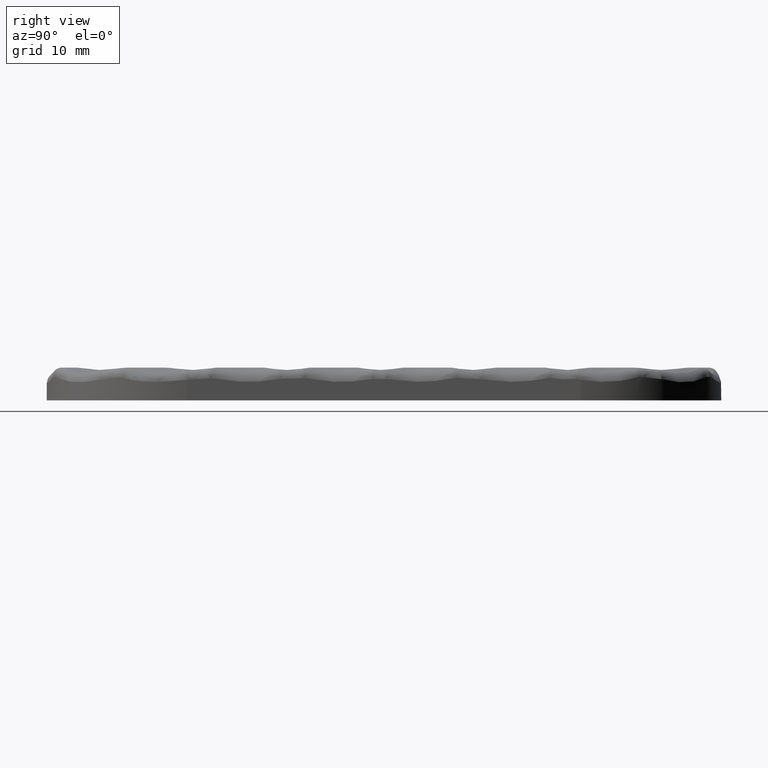
[diagram: clean part render]
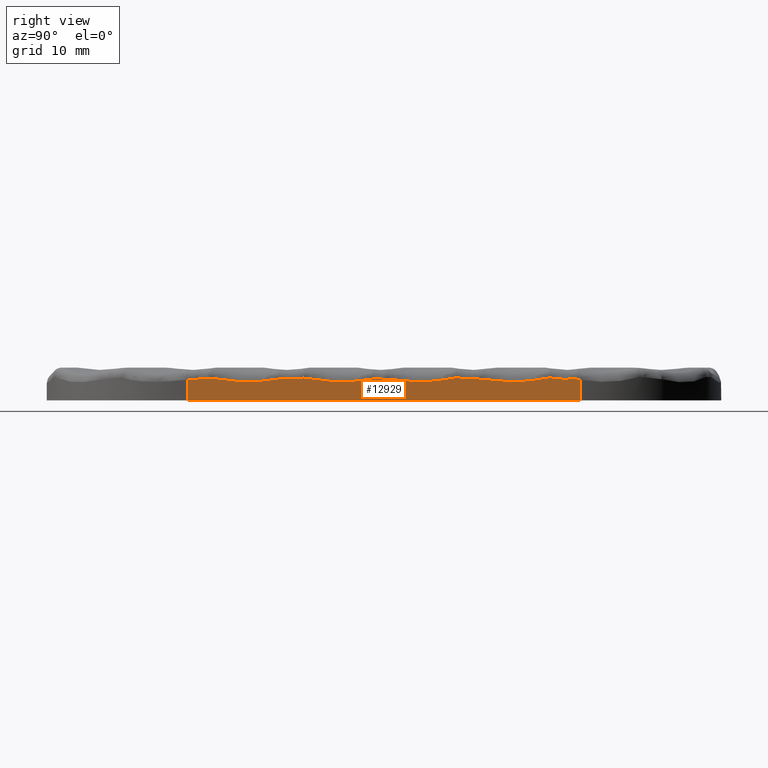
[diagram: same view with one face highlighted and labeled with its STEP entity id]
A machine part, right view. The second image highlights one B-rep face of the part: STEP entity #12929.
In plain terms, the highlighted planar face has unit normal (-1, 0, 0).
Its self-contained STEP definition (entity closure, byte-faithful):
#70 = CARTESIAN_POINT ( 'NONE',  ( 15.00000000000001600, 10.26515121054053000, 2.266741671530982500 ) ) ;
#424 = DIRECTION ( 'NONE',  ( -0.0000000000000000000, -0.0000000000000000000, -1.000000000000000000 ) ) ;
#558 = VERTEX_POINT ( 'NONE', #4744 ) ;
#687 = CARTESIAN_POINT ( 'NONE',  ( 15.00000000000283200, -1.228737188735840900, 2.278487614124075300 ) ) ;
#964 = VERTEX_POINT ( 'NONE', #3925 ) ;
#978 = EDGE_CURVE ( 'NONE', #5877, #24767, #23312, .T. ) ;
#1010 = CARTESIAN_POINT ( 'NONE',  ( 15.00000000000000200, 19.58506718431053500, 2.212813865225828000 ) ) ;
#1072 = CARTESIAN_POINT ( 'NONE',  ( 15.00000000000000000, -20.02405517232721300, 2.255134669010250300 ) ) ;
#1246 = ORIENTED_EDGE ( 'NONE', *, *, #10887, .F. ) ;
#1394 = EDGE_CURVE ( 'NONE', #24767, #16163, #23773, .T. ) ;
#2309 = CARTESIAN_POINT ( 'NONE',  ( 15.00000000000018300, -18.58166615907482500, 2.379845569770552100 ) ) ;
#2345 = CARTESIAN_POINT ( 'NONE',  ( 15.00000000000000000, 8.523427355173828000, 2.267326169661894500 ) ) ;
#2380 = VERTEX_POINT ( 'NONE', #2594 ) ;
#2515 = ORIENTED_EDGE ( 'NONE', *, *, #16660, .F. ) ;
#2594 = CARTESIAN_POINT ( 'NONE',  ( 15.00000000000001100, -11.22873718874324400, 2.278487614125050100 ) ) ;
#2658 = LINE ( 'NONE', #11893, #18635 ) ;
#2695 = CARTESIAN_POINT ( 'NONE',  ( 15.00000000000000000, -7.363233738469245900, 2.129852420028608900 ) ) ;
#2761 = B_SPLINE_CURVE_WITH_KNOTS ( 'NONE', 3,
 ( #21932, #24035, #11522, #26125 ),
 .UNSPECIFIED., .F., .F.,
 ( 4, 4 ),
 ( 0.0000000000000000000, 1.000000000000000000 ),
 .UNSPECIFIED. ) ;
#3083 = ORIENTED_EDGE ( 'NONE', *, *, #13770, .F. ) ;
#3223 = LINE ( 'NONE', #25138, #13653 ) ;
#3386 = CARTESIAN_POINT ( 'NONE',  ( 15.00000000000000200, -19.05979786032249400, 2.310562813426318800 ) ) ;
#3603 = B_SPLINE_CURVE_WITH_KNOTS ( 'NONE', 3,
 ( #10961, #2695, #8957, #23565, #11049, #25656, #13142, #687 ),
 .UNSPECIFIED., .F., .F.,
 ( 4, 2, 2, 4 ),
 ( 0.0000000000000000000, 0.5000000000000000000, 0.7500000000000000000, 1.000000000000000000 ),
 .UNSPECIFIED. ) ;
#3831 = CARTESIAN_POINT ( 'NONE',  ( 15.00000000000000000, -0.7313015001417037000, 2.244930736326999900 ) ) ;
#3925 = CARTESIAN_POINT ( 'NONE',  ( 14.99999999999883500, 20.55022023845433300, 2.284725248673581200 ) ) ;
#4010 = CARTESIAN_POINT ( 'NONE',  ( 15.00000000000000000, -20.99999999999999600, 3.500000000000000000 ) ) ;
#4043 = B_SPLINE_CURVE_WITH_KNOTS ( 'NONE', 3,
 ( #70, #12629, #16800, #4338, #18925, #6407 ),
 .UNSPECIFIED., .F., .F.,
 ( 4, 2, 4 ),
 ( 0.0000000000000000000, 0.5000000000000000000, 1.000000000000000000 ),
 .UNSPECIFIED. ) ;
#4314 = ORIENTED_EDGE ( 'NONE', *, *, #978, .F. ) ;
#4338 = CARTESIAN_POINT ( 'NONE',  ( 15.00000000000000000, 15.20915827264443200, 2.007467431866691900 ) ) ;
#4392 = CARTESIAN_POINT ( 'NONE',  ( 15.00000000000000000, -16.13546356255181600, 1.999753517743418500 ) ) ;
#4436 = DIRECTION ( 'NONE',  ( 0.0000000000000000000, 0.0000000000000000000, 1.000000000000000000 ) ) ;
#4744 = CARTESIAN_POINT ( 'NONE',  ( 15.00000000000000000, -20.99999999999999600, 0.0000000000000000000 ) ) ;
#5070 = CARTESIAN_POINT ( 'NONE',  ( 15.00000000000000000, -20.34984409943866600, 2.245817095981205400 ) ) ;
#5108 =( BOUNDED_CURVE ( )  B_SPLINE_CURVE ( 3, ( #8614, #2345, #10707, #25322 ),
 .UNSPECIFIED., .F., .T. ) 
 B_SPLINE_CURVE_WITH_KNOTS ( ( 4, 4 ),
 ( 0.0000000000000000000, 1.000000000000000000 ),
 .UNSPECIFIED. ) 
 CURVE ( )  GEOMETRIC_REPRESENTATION_ITEM ( )  RATIONAL_B_SPLINE_CURVE ( ( 1.000000000000000000, 0.9964023072120087300, 0.9964023072120087300, 1.000000000000000000 ) ) 
 REPRESENTATION_ITEM ( '' )  );
#5296 = CARTESIAN_POINT ( 'NONE',  ( 15.00000000000000200, -19.54112737258910900, 2.268946414184715500 ) ) ;
#5446 = VERTEX_POINT ( 'NONE', #20679 ) ;
#5877 = VERTEX_POINT ( 'NONE', #17401 ) ;
#6104 = ORIENTED_EDGE ( 'NONE', *, *, #12780, .T. ) ;
#6380 = CARTESIAN_POINT ( 'NONE',  ( 15.00000000000000500, 17.66201014853802000, 2.403020253668133800 ) ) ;
#6406 = ORIENTED_EDGE ( 'NONE', *, *, #18941, .F. ) ;
#6407 = CARTESIAN_POINT ( 'NONE',  ( 15.00000000000000500, 17.66201014853802000, 2.403020253668133800 ) ) ;
#6466 = CARTESIAN_POINT ( 'NONE',  ( 15.00000000000000000, -12.45733699748620400, 2.062001201105714300 ) ) ;
#6896 = AXIS2_PLACEMENT_3D ( 'NONE', #14824, #16911, #4436 ) ;
#7117 = VERTEX_POINT ( 'NONE', #19470 ) ;
#7291 = EDGE_CURVE ( 'NONE', #13926, #12267, #4043, .T. ) ;
#7778 = LINE ( 'NONE', #4010, #12676 ) ;
#7809 = DIRECTION ( 'NONE',  ( 0.0000000000000000000, 1.000000000000000000, -0.0000000000000000000 ) ) ;
#8614 = CARTESIAN_POINT ( 'NONE',  ( 15.00000000000000200, 7.662010148538021400, 2.403020253668135100 ) ) ;
#8957 = CARTESIAN_POINT ( 'NONE',  ( 15.00000000000000000, -6.140550396327037100, 2.000083837441957600 ) ) ;
#8988 = CARTESIAN_POINT ( 'NONE',  ( 14.99999999999999800, 0.2651512105405833800, 2.266741671530956700 ) ) ;
#9112 = CARTESIAN_POINT ( 'NONE',  ( 15.00000000000000000, -9.458802295270306400, 2.252745841712117800 ) ) ;
#9715 = ORIENTED_EDGE ( 'NONE', *, *, #24015, .F. ) ;
#10697 = EDGE_CURVE ( 'NONE', #16852, #2380, #26534, .T. ) ;
#10707 = CARTESIAN_POINT ( 'NONE',  ( 15.00000000000000000, 9.394274081494726800, 2.221735956033415300 ) ) ;
#10887 = EDGE_CURVE ( 'NONE', #21027, #20453, #25043, .T. ) ;
#10961 = CARTESIAN_POINT ( 'NONE',  ( 15.00000000000018300, -8.581666159074814000, 2.379845569770550700 ) ) ;
#11049 = CARTESIAN_POINT ( 'NONE',  ( 15.00000000000000000, -3.686818261742061100, 1.994423876537335700 ) ) ;
#11215 = CARTESIAN_POINT ( 'NONE',  ( 15.00000000000000200, 7.662010148538021400, 2.403020253668135100 ) ) ;
#11265 = VERTEX_POINT ( 'NONE', #26492 ) ;
#11371 = CARTESIAN_POINT ( 'NONE',  ( 15.00000000000000500, 17.66201014853802000, 2.403020253668133800 ) ) ;
#11522 = CARTESIAN_POINT ( 'NONE',  ( 15.00000000000000000, 20.84965435162851200, 2.222282945956894000 ) ) ;
#11893 = CARTESIAN_POINT ( 'NONE',  ( 15.00000000000000000, -20.99999999999999600, 0.0000000000000000000 ) ) ;
#12019 = CARTESIAN_POINT ( 'NONE',  ( 15.00000000000000000, -0.2327506377204947900, 2.241010798390373100 ) ) ;
#12156 = CARTESIAN_POINT ( 'NONE',  ( 15.00000000000000000, -20.99999999999999300, 2.201307042172786900 ) ) ;
#12267 = VERTEX_POINT ( 'NONE', #6380 ) ;
#12341 = EDGE_CURVE ( 'NONE', #2380, #7117, #15633, .T. ) ;
#12629 = CARTESIAN_POINT ( 'NONE',  ( 15.00000000000000000, 11.50207522808742100, 2.053271842758626100 ) ) ;
#12676 = VECTOR ( 'NONE', #16462, 1000.000000000000000 ) ;
#12686 = CARTESIAN_POINT ( 'NONE',  ( 15.00000000000000000, -17.35951350239083600, 2.129089116764252500 ) ) ;
#12723 = PLANE ( 'NONE',  #6896 ) ;
#12780 = EDGE_CURVE ( 'NONE', #558, #11265, #2658, .T. ) ;
#12900 = ORIENTED_EDGE ( 'NONE', *, *, #21257, .F. ) ;
#12929 = ADVANCED_FACE ( 'NONE', ( #17302 ), #12723, .F. ) ;
#13142 = CARTESIAN_POINT ( 'NONE',  ( 15.00000000000000000, -1.837882858488858000, 2.171152613109493100 ) ) ;
#13472 = CARTESIAN_POINT ( 'NONE',  ( 15.00000000000000000, -20.02405517232721300, 2.255134669010250300 ) ) ;
#13551 = CARTESIAN_POINT ( 'NONE',  ( 15.00000000000000000, -20.99999999999999300, 2.201307042172786900 ) ) ;
#13653 = VECTOR ( 'NONE', #424, 1000.000000000000000 ) ;
#13672 = CARTESIAN_POINT ( 'NONE',  ( 15.00000000000283200, -1.228737188735840900, 2.278487614124075300 ) ) ;
#13770 = EDGE_CURVE ( 'NONE', #16163, #13926, #5108, .T. ) ;
#13802 = CARTESIAN_POINT ( 'NONE',  ( 15.00000000000000000, -20.02405517232721300, 2.255134669010250300 ) ) ;
#13926 = VERTEX_POINT ( 'NONE', #21908 ) ;
#13950 = CARTESIAN_POINT ( 'NONE',  ( 14.99999999999999800, 0.2651512105405833800, 2.266741671530956700 ) ) ;
#14611 =( BOUNDED_CURVE ( )  B_SPLINE_CURVE ( 3, ( #13802, #5296, #3386, #17984 ),
 .UNSPECIFIED., .F., .F. ) 
 B_SPLINE_CURVE_WITH_KNOTS ( ( 4, 4 ),
 ( 0.0000000000000000000, 1.000000000000000000 ),
 .UNSPECIFIED. ) 
 CURVE ( )  GEOMETRIC_REPRESENTATION_ITEM ( )  RATIONAL_B_SPLINE_CURVE ( ( 1.000000000000000000, 0.9988922879187340800, 0.9988922879187340800, 1.000000000000000000 ) ) 
 REPRESENTATION_ITEM ( '' )  );
#14824 = CARTESIAN_POINT ( 'NONE',  ( 15.00000000000000000, -20.99999999999999600, 3.500000000000000000 ) ) ;
#15559 = CARTESIAN_POINT ( 'NONE',  ( 14.99999999999883500, 20.55022023845433300, 2.284725248673581200 ) ) ;
#15633 =( BOUNDED_CURVE ( )  B_SPLINE_CURVE ( 3, ( #19515, #19334, #9112, #23723 ),
 .UNSPECIFIED., .F., .T. ) 
 B_SPLINE_CURVE_WITH_KNOTS ( ( 4, 4 ),
 ( 0.0000000000000000000, 1.000000000000000000 ),
 .UNSPECIFIED. ) 
 CURVE ( )  GEOMETRIC_REPRESENTATION_ITEM ( )  RATIONAL_B_SPLINE_CURVE ( ( 1.000000000000000000, 0.9962842536180736000, 0.9962842536180736000, 1.000000000000000000 ) ) 
 REPRESENTATION_ITEM ( '' )  );
#16015 = ORIENTED_EDGE ( 'NONE', *, *, #23842, .F. ) ;
#16163 = VERTEX_POINT ( 'NONE', #11215 ) ;
#16462 = DIRECTION ( 'NONE',  ( 0.0000000000000000000, 0.0000000000000000000, 1.000000000000000000 ) ) ;
#16547 = ORIENTED_EDGE ( 'NONE', *, *, #19532, .F. ) ;
#16660 = EDGE_CURVE ( 'NONE', #964, #5446, #2761, .T. ) ;
#16800 = CARTESIAN_POINT ( 'NONE',  ( 15.00000000000000000, 12.74243794003075600, 1.961590349905532900 ) ) ;
#16852 = VERTEX_POINT ( 'NONE', #22763 ) ;
#16911 = DIRECTION ( 'NONE',  ( -1.000000000000000000, 0.0000000000000000000, 0.0000000000000000000 ) ) ;
#17302 = FACE_OUTER_BOUND ( 'NONE', #23558, .T. ) ;
#17401 = CARTESIAN_POINT ( 'NONE',  ( 15.00000000000283200, -1.228737188735840900, 2.278487614124075300 ) ) ;
#17984 = CARTESIAN_POINT ( 'NONE',  ( 15.00000000000018300, -18.58166615907482500, 2.379845569770552100 ) ) ;
#18400 = CARTESIAN_POINT ( 'NONE',  ( 14.99999999999999800, 0.2651512105405833800, 2.266741671530956700 ) ) ;
#18635 = VECTOR ( 'NONE', #7809, 1000.000000000000000 ) ;
#18925 = CARTESIAN_POINT ( 'NONE',  ( 15.00000000000000000, 16.43810009522571400, 2.144373716186108500 ) ) ;
#18941 = EDGE_CURVE ( 'NONE', #5446, #11265, #3223, .T. ) ;
#18981 = CARTESIAN_POINT ( 'NONE',  ( 15.00000000000000000, -13.68448432217117400, 1.966179139335327400 ) ) ;
#19334 = CARTESIAN_POINT ( 'NONE',  ( 15.00000000000000000, -10.34445014796556900, 2.218833848129277500 ) ) ;
#19470 = CARTESIAN_POINT ( 'NONE',  ( 15.00000000000018300, -8.581666159074814000, 2.379845569770550700 ) ) ;
#19515 = CARTESIAN_POINT ( 'NONE',  ( 15.00000000000001100, -11.22873718874324400, 2.278487614125050100 ) ) ;
#19532 = EDGE_CURVE ( 'NONE', #558, #21027, #7778, .T. ) ;
#19627 = ORIENTED_EDGE ( 'NONE', *, *, #10697, .F. ) ;
#19655 = CARTESIAN_POINT ( 'NONE',  ( 15.00000000000000000, -20.67508790511167800, 2.226522843129127100 ) ) ;
#20311 = CARTESIAN_POINT ( 'NONE',  ( 15.00000000000000000, 0.8779421699164562400, 2.160985473210713400 ) ) ;
#20453 = VERTEX_POINT ( 'NONE', #13472 ) ;
#20501 = CARTESIAN_POINT ( 'NONE',  ( 15.00000000000000000, 1.501001505242772500, 2.084083456848768700 ) ) ;
#20588 = CARTESIAN_POINT ( 'NONE',  ( 15.00000000000000000, 2.739446761370664300, 1.990448102864172100 ) ) ;
#20679 = CARTESIAN_POINT ( 'NONE',  ( 14.99999999999999800, 21.00000000000000000, 2.194184648248107500 ) ) ;
#21027 = VERTEX_POINT ( 'NONE', #12156 ) ;
#21068 = CARTESIAN_POINT ( 'NONE',  ( 15.00000000000001100, -11.22873718874324400, 2.278487614125050100 ) ) ;
#21257 = EDGE_CURVE ( 'NONE', #7117, #5877, #3603, .T. ) ;
#21789 = ORIENTED_EDGE ( 'NONE', *, *, #1394, .F. ) ;
#21908 = CARTESIAN_POINT ( 'NONE',  ( 15.00000000000001600, 10.26515121054053000, 2.266741671530982500 ) ) ;
#21932 = CARTESIAN_POINT ( 'NONE',  ( 14.99999999999883500, 20.55022023845433300, 2.284725248673581200 ) ) ;
#22142 = ORIENTED_EDGE ( 'NONE', *, *, #7291, .F. ) ;
#22438 = CARTESIAN_POINT ( 'NONE',  ( 15.00000000000000000, 3.357501676216939400, 1.973072849903482000 ) ) ;
#22705 = CARTESIAN_POINT ( 'NONE',  ( 15.00000000000000000, 5.208239051825811900, 2.007363899342975900 ) ) ;
#22763 = CARTESIAN_POINT ( 'NONE',  ( 15.00000000000018300, -18.58166615907482500, 2.379845569770552100 ) ) ;
#23312 =( BOUNDED_CURVE ( )  B_SPLINE_CURVE ( 3, ( #13672, #3831, #12019, #13950 ),
 .UNSPECIFIED., .F., .F. ) 
 B_SPLINE_CURVE_WITH_KNOTS ( ( 4, 4 ),
 ( 0.0000000000000000000, 1.000000000000000000 ),
 .UNSPECIFIED. ) 
 CURVE ( )  GEOMETRIC_REPRESENTATION_ITEM ( )  RATIONAL_B_SPLINE_CURVE ( ( 1.000000000000000000, 0.9988204560320639300, 0.9988204560320639300, 1.000000000000000000 ) ) 
 REPRESENTATION_ITEM ( '' )  );
#23558 = EDGE_LOOP ( 'NONE', ( #1246, #16547, #6104, #6406, #2515, #16015, #22142, #3083, #21789, #4314, #12900, #23965, #19627, #9715 ) ) ;
#23565 = CARTESIAN_POINT ( 'NONE',  ( 15.00000000000000000, -4.300971127526988600, 1.974494340646505600 ) ) ;
#23723 = CARTESIAN_POINT ( 'NONE',  ( 15.00000000000018300, -8.581666159074814000, 2.379845569770550700 ) ) ;
#23773 = B_SPLINE_CURVE_WITH_KNOTS ( 'NONE', 3,
 ( #18400, #20311, #20501, #20588, #22438, #22705, #24901, #26533 ),
 .UNSPECIFIED., .F., .F.,
 ( 4, 2, 2, 4 ),
 ( 0.0000000000000000000, 0.2500000000000000000, 0.5000000000000000000, 1.000000000000000000 ),
 .UNSPECIFIED. ) ;
#23842 = EDGE_CURVE ( 'NONE', #12267, #964, #26307, .T. ) ;
#23883 = CARTESIAN_POINT ( 'NONE',  ( 15.00000000000000200, 18.61804963003020300, 2.252420868474140900 ) ) ;
#23965 = ORIENTED_EDGE ( 'NONE', *, *, #12341, .F. ) ;
#24015 = EDGE_CURVE ( 'NONE', #20453, #16852, #14611, .T. ) ;
#24035 = CARTESIAN_POINT ( 'NONE',  ( 15.00000000000000000, 20.69972426965072300, 2.252446038196850100 ) ) ;
#24767 = VERTEX_POINT ( 'NONE', #8988 ) ;
#24901 = CARTESIAN_POINT ( 'NONE',  ( 15.00000000000000000, 6.437642409668636200, 2.144276994376113500 ) ) ;
#25043 = B_SPLINE_CURVE_WITH_KNOTS ( 'NONE', 3,
 ( #13551, #19655, #5070, #1072 ),
 .UNSPECIFIED., .F., .F.,
 ( 4, 4 ),
 ( 0.0000000000000000000, 1.000000000000000000 ),
 .UNSPECIFIED. ) ;
#25138 = CARTESIAN_POINT ( 'NONE',  ( 14.99999999999999800, 21.00000000000000000, 3.500000000000000000 ) ) ;
#25322 = CARTESIAN_POINT ( 'NONE',  ( 15.00000000000001600, 10.26515121054053000, 2.266741671530982500 ) ) ;
#25656 = CARTESIAN_POINT ( 'NONE',  ( 15.00000000000000000, -2.456550894468991300, 2.092449543358048600 ) ) ;
#26125 = CARTESIAN_POINT ( 'NONE',  ( 14.99999999999999800, 21.00000000000000000, 2.194184648248107500 ) ) ;
#26307 =( BOUNDED_CURVE ( )  B_SPLINE_CURVE ( 3, ( #11371, #23883, #1010, #15559 ),
 .UNSPECIFIED., .F., .F. ) 
 B_SPLINE_CURVE_WITH_KNOTS ( ( 4, 4 ),
 ( 0.0000000000000000000, 1.000000000000000000 ),
 .UNSPECIFIED. ) 
 CURVE ( )  GEOMETRIC_REPRESENTATION_ITEM ( )  RATIONAL_B_SPLINE_CURVE ( ( 1.000000000000000000, 0.9955731334735371500, 0.9955731334735371500, 1.000000000000000000 ) ) 
 REPRESENTATION_ITEM ( '' )  );
#26492 = CARTESIAN_POINT ( 'NONE',  ( 15.00000000000000000, 20.99999999999999600, 0.0000000000000000000 ) ) ;
#26533 = CARTESIAN_POINT ( 'NONE',  ( 15.00000000000000200, 7.662010148538021400, 2.403020253668135100 ) ) ;
#26534 = B_SPLINE_CURVE_WITH_KNOTS ( 'NONE', 3,
 ( #2309, #12686, #4392, #18981, #6466, #21068 ),
 .UNSPECIFIED., .F., .F.,
 ( 4, 2, 4 ),
 ( 0.0000000000000000000, 0.5000000000000000000, 1.000000000000000000 ),
 .UNSPECIFIED. ) ;